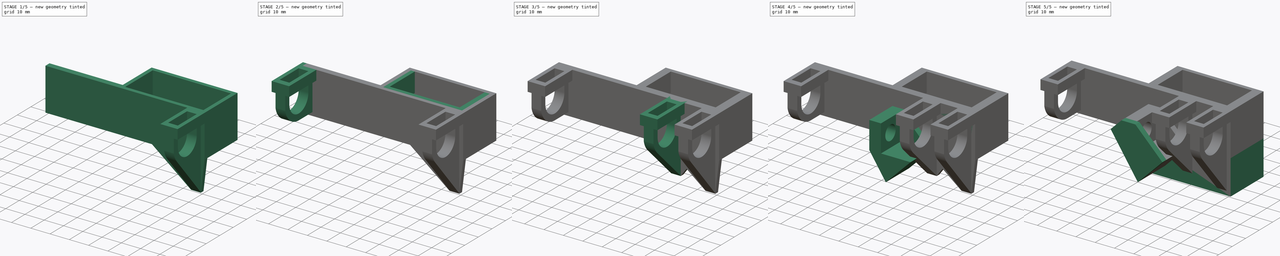
[diagram: build sequence overview — one tinted view per stage of 5, left to right]
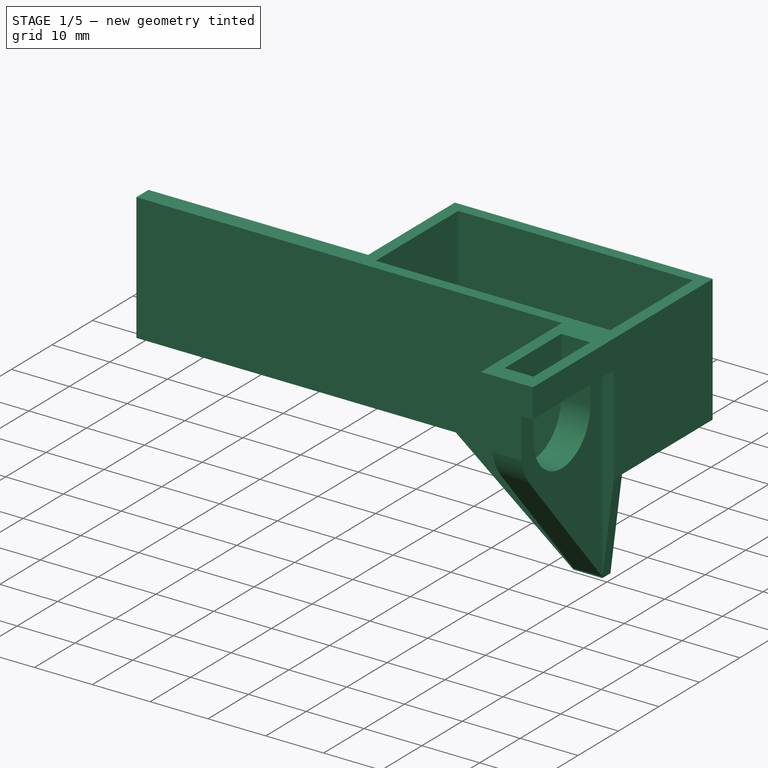
[diagram: stage 1 of 5 — iso view after this stage's code; geometry added in this stage tinted green]
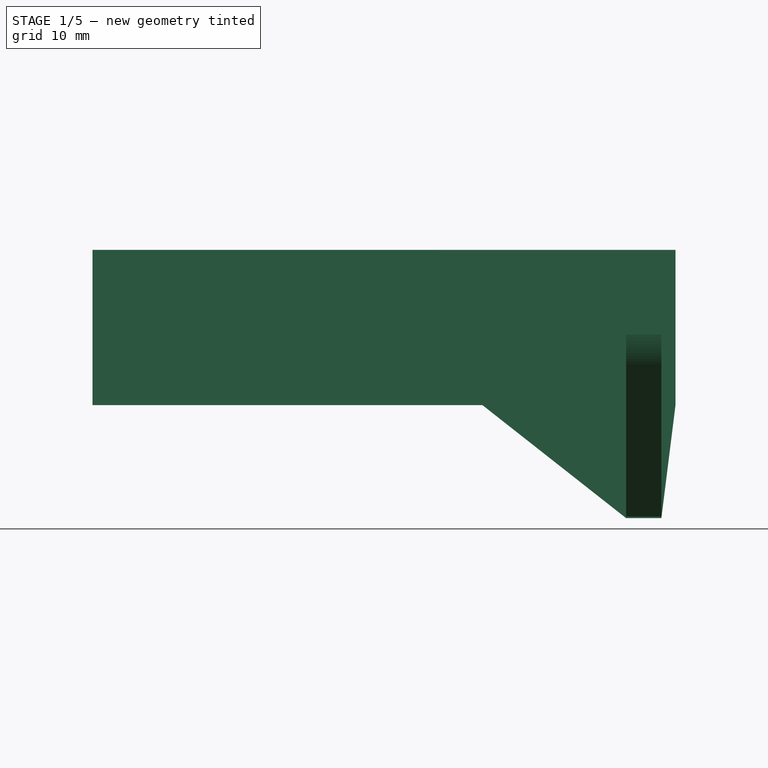
[diagram: stage 1 of 5 — front view after this stage's code; geometry added in this stage tinted green]
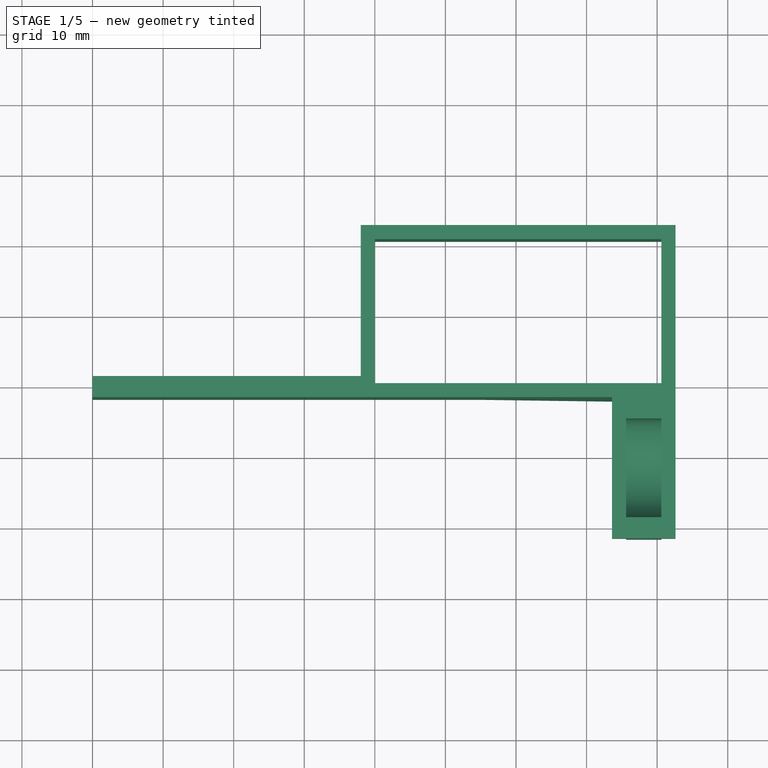
[diagram: stage 1 of 5 — top view after this stage's code; geometry added in this stage tinted green]
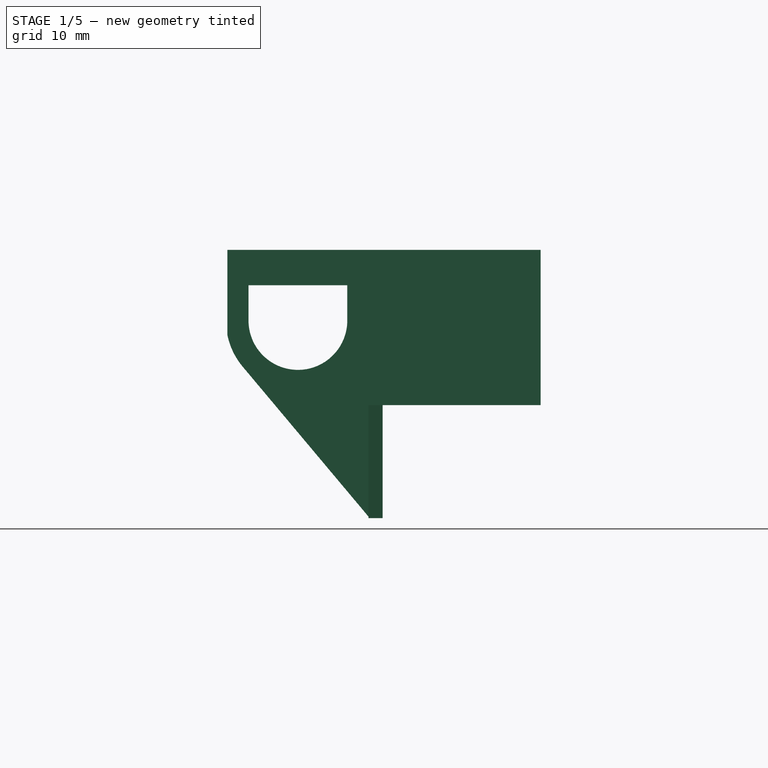
[diagram: stage 1 of 5 — right view after this stage's code; geometry added in this stage tinted green]
FCSTD DOCUMENT  (FreeCAD 1.0R39109 (Git))
Label: CapL
License: All rights reserved
LicenseURL: https://en.wikipedia.org/wiki/All_rights_reserved
objects: Sketcher::SketchObject×17, PartDesign::Pad×17, PartDesign::Body×4, PartDesign::AdditiveBox×1, PartDesign::SubtractiveBox×1, App::LinkGroup×1
note: 95 computed .brp shape members not serialized (recipe doc carries the construction recipe); baked Part::Feature solids carry a one-line shape summary decoded from their .brp

FEATURE [PartDesign::Body] Body
  AllowCompound = false
  Group = -> [Pad001,Sketch002,Sketch004,Pad003,Sketch,Pad,Sketch005,Pad004,Sketch012,Pad011]
  Origin = -> Origin
  Tip = -> Pad011
FEATURE [Sketcher::SketchObject] Sketch013
  ArcFitTolerance = 1e-06
  AttachmentOffset = pos=(0,10,40.6) rot=(0,0,1;0rad)
  AttachmentSupport = -> [YZ_Plane003]
  FullyConstrained = true
  MakeInternals = false
  MapMode = 5
  Placement = pos=(40.6,0,10) rot=(0.57735,0.57735,0.57735;2.0944rad)
  sketch-geometry (10):
    g0: LineSegment StartX=-22 StartY=12 StartZ=0 EndX=-22 EndY=0 EndZ=0
    g1: LineSegment StartX=-2 StartY=-25.7829 StartZ=0 EndX=-2 EndY=2 EndZ=0
    g2: LineSegment StartX=-22 StartY=12 StartZ=0 EndX=-19 EndY=12 EndZ=0
    g3: LineSegment StartX=-19 StartY=12 StartZ=0 EndX=-19 EndY=2 EndZ=0
    g4: LineSegment StartX=-19.8122 StartY=-4.55517 StartZ=0 EndX=-2 EndY=-25.7829 EndZ=0
    g5: ArcOfCircle CenterX=-12 CenterY=2 CenterZ=0 NormalX=0 NormalY=0 NormalZ=1 AngleXU=0 Radius=7 StartAngle=3.14159 EndAngle=6.28319
    g6: ArcOfCircle CenterX=-12 CenterY=2 CenterZ=0 NormalX=0 NormalY=0 NormalZ=1 AngleXU=0 Radius=10.198 StartAngle=3.33899 EndAngle=3.83972
    g7: LineSegment StartX=-5 StartY=2 StartZ=0 EndX=-5 EndY=12 EndZ=0
    g8: LineSegment StartX=-5 StartY=12 StartZ=0 EndX=-2 EndY=12 EndZ=0
    g9: LineSegment StartX=-2 StartY=12 StartZ=0 EndX=-2 EndY=2 EndZ=0
  constraints (29):
    c: Vertical(g0)
    c: Vertical(g1)
    c: Coincident(g0,g2)
    c: Horizontal(g2)
    c: Coincident(g2,g3)
    c: Vertical(g3)
    c: Coincident(g4,g1)
    c: DistanceX(g2,g2) = 3
    c: DistanceY(g0) = 12
    c: DistanceY(g3,g1) = 0
    c: DistanceY(g-1,g1) = 2
    c: DistanceX(g1,g-1) = 2
    c: DistanceY(g0,g-1) = 0
    c: Coincident(g5,g3)
    c: DistanceY(g5,g3) = 0
    c: Coincident(g6,g5)
    c: Coincident(g6,g0)
    c: Tangent(g6,g4) = -1.5708
    c: Angle(g1,g4) = 0.698132
    c: Radius(g5) = 7
    c: DistanceX(g5,g1) = 3
    c: Vertical(g7)
    c: Coincident(g7,g8)
    c: Horizontal(g8)
    c: Coincident(g8,g9)
    c: Vertical(g9)
    c: Tangent(g7,g5) = -1.5708
    c: Coincident(g9,g1)
    c: DistanceY(g7,g2) = 0
FEATURE [Sketcher::SketchObject] Sketch014
  ArcFitTolerance = 0
  AttachmentSupport = -> [XY_Plane003]
  FullyConstrained = true
  MakeInternals = false
  MapMode = 5
  sketch-geometry (10):
    g0: LineSegment StartX=0 StartY=20.4 StartZ=0 EndX=40.6 EndY=20.4 EndZ=0
    g1: LineSegment StartX=40.6 StartY=20.4 StartZ=0 EndX=40.6 EndY=0 EndZ=0
    g2: LineSegment StartX=40.6 StartY=0 StartZ=0 EndX=0 EndY=0 EndZ=0
    g3: LineSegment StartX=0 StartY=0 StartZ=0 EndX=0 EndY=20.4 EndZ=0
    g4: LineSegment StartX=-2 StartY=22.4 StartZ=0 EndX=42.6 EndY=22.4 EndZ=0
    g5: LineSegment StartX=42.6 StartY=22.4 StartZ=0 EndX=42.6 EndY=-2 EndZ=0
    g6: LineSegment StartX=42.6 StartY=-2 StartZ=0 EndX=-40 EndY=-2 EndZ=0
    g7: LineSegment StartX=-2 StartY=1 StartZ=0 EndX=-2 EndY=22.4 EndZ=0
    g8: LineSegment StartX=-2 StartY=1 StartZ=0 EndX=-40 EndY=1 EndZ=0
    g9: LineSegment StartX=-40 StartY=1 StartZ=0 EndX=-40 EndY=-2 EndZ=0
  constraints (30):
    c: Coincident(g0,g1)
    c: Coincident(g1,g2)
    c: Coincident(g2,g3)
    c: Coincident(g3,g0)
    c: Horizontal(g0)
    c: Horizontal(g2)
    c: Vertical(g1)
    c: Vertical(g3)
    c: Coincident(g4,g5)
    c: Coincident(g5,g6)
    c: Coincident(g7,g4)
    c: Horizontal(g4)
    c: Horizontal(g6)
    c: Vertical(g5)
    c: Vertical(g7)
    c: DistanceX(g2) = 0
    c: DistanceY(g2) = 0
    c: DistanceY(g3,g3) = 20.4
    c: DistanceX(g0,g0) = 40.6
    c: DistanceX(g0,g4) = 2
    c: DistanceX(g4,g0) = 2
    c: DistanceY(g0,g4) = 2
    c: DistanceY(g5,g1) = 2
    c: Coincident(g7,g8)
    c: Horizontal(g8)
    c: Coincident(g8,g9)
    c: Coincident(g9,g6)
    c: Vertical(g9)
    c: DistanceX(g8,g2) = 40
    c: DistanceY(g9,g9) = 3
FEATURE [PartDesign::Pad] Pad013
  Direction = (0,0,1)
  Length = 22
  Length2 = 10
  Profile = -> Sketch014
  ReferenceAxis = -> Sketch014 [N_Axis]
  Suppressed = false
  Type = 0
FEATURE [Sketcher::SketchObject] Sketch015
  ArcFitTolerance = 1e-06
  AttachmentSupport = -> [XZ_Plane003]
  FullyConstrained = true
  MakeInternals = false
  MapMode = 5
  Placement = pos=(0,0,0) rot=(1,0,0;1.5708rad)
  sketch-geometry (5):
    g0: LineSegment StartX=0 StartY=12 StartZ=0 EndX=35.6 EndY=-16 EndZ=0
    g1: LineSegment StartX=35.6 StartY=-16 StartZ=0 EndX=40.6 EndY=-16 EndZ=0
    g2: LineSegment StartX=42.6 StartY=12 StartZ=0 EndX=0 EndY=12 EndZ=0
    g3: LineSegment StartX=42.6 StartY=0 StartZ=0 EndX=42.6 EndY=12 EndZ=0
    g4: LineSegment StartX=42.6 StartY=0 StartZ=0 EndX=40.6 EndY=-16 EndZ=0
  constraints (15):
    c: Coincident(g0,g1)
    c: Coincident(g2,g0)
    c: Horizontal(g1)
    c: Horizontal(g2)
    c: DistanceX(g0) = 0
    c: DistanceY(g0) = 12
    c: DistanceX(g-1,g2) = 42.6
    c: DistanceY(g0,g-1) = 16
    c: Coincident(g2,g3)
    c: DistanceX(g1,g1) = 5
    c: Vertical(g3)
    c: Coincident(g4,g3)
    c: Coincident(g4,g1)
    c: DistanceY(g-1,g3) = 0
    c: DistanceX(g1,g3) = 2
FEATURE [PartDesign::Pad] Pad014
  BaseFeature = -> Pad013
  Direction = (0,-1,2e-16)
  Length = 2
  Length2 = 10
  Profile = -> Sketch015
  ReferenceAxis = -> Sketch015 [N_Axis]
  Suppressed = false
  Type = 0
FEATURE [PartDesign::Pad] Pad012
  BaseFeature = -> Pad014
  Direction = (1,0,0)
  Length = 5
  Length2 = 10
  Profile = -> Sketch013
  ReferenceAxis = -> Sketch013 [N_Axis]
  Reversed = true
  Suppressed = false
  Type = 0
FEATURE [Sketcher::SketchObject] Sketch016
  ArcFitTolerance = 1e-06
  AttachmentOffset = pos=(35.6,0,22) rot=(0,0,1;0rad)
  AttachmentSupport = -> [XY_Plane003]
  FullyConstrained = true
  MakeInternals = false
  MapMode = 5
  Placement = pos=(35.6,0,22) rot=(0,0,1;0rad)
  sketch-geometry (8):
    g0: LineSegment StartX=5 StartY=-2 StartZ=0 EndX=0 EndY=-2 EndZ=0
    g1: LineSegment StartX=0 StartY=-2 StartZ=0 EndX=0 EndY=-19 EndZ=0
    g2: LineSegment StartX=0 StartY=-19 StartZ=0 EndX=5 EndY=-19 EndZ=0
    g3: LineSegment StartX=5 StartY=-19 StartZ=0 EndX=5 EndY=-2 EndZ=0
    g4: LineSegment StartX=-2 StartY=0 StartZ=0 EndX=-2 EndY=-22 EndZ=0
    g5: LineSegment StartX=-2 StartY=-22 StartZ=0 EndX=7 EndY=-22 EndZ=0
    g6: LineSegment StartX=7 StartY=-22 StartZ=0 EndX=7 EndY=0 EndZ=0
    g7: LineSegment StartX=7 StartY=0 StartZ=0 EndX=-2 EndY=0 EndZ=0
  constraints (24):
    c: Coincident(g0,g1)
    c: Coincident(g1,g2)
    c: Coincident(g2,g3)
    c: Coincident(g3,g0)
    c: Horizontal(g0)
    c: Horizontal(g2)
    c: Vertical(g1)
    c: Vertical(g3)
    c: DistanceX(g0) = 0
    c: DistanceY(g0) = -2
    c: DistanceX(g2) = 5
    c: DistanceY(g2) = -19
    c: Coincident(g4,g5)
    c: Coincident(g5,g6)
    c: Coincident(g6,g7)
    c: Coincident(g7,g4)
    c: Vertical(g4)
    c: Vertical(g6)
    c: Horizontal(g5)
    c: Horizontal(g7)
    c: DistanceX(g4) = -2
    c: DistanceY(g4) = 0
    c: DistanceY(g5,g2) = 3
    c: DistanceX(g0,g6) = 2
FEATURE [PartDesign::Pad] Pad015
  BaseFeature = -> Pad012
  Direction = (0,0,1)
  Length = 5
  Length2 = 10
  Profile = -> Sketch016
  ReferenceAxis = -> Sketch016 [N_Axis]
  Reversed = true
  Suppressed = false
  Type = 0
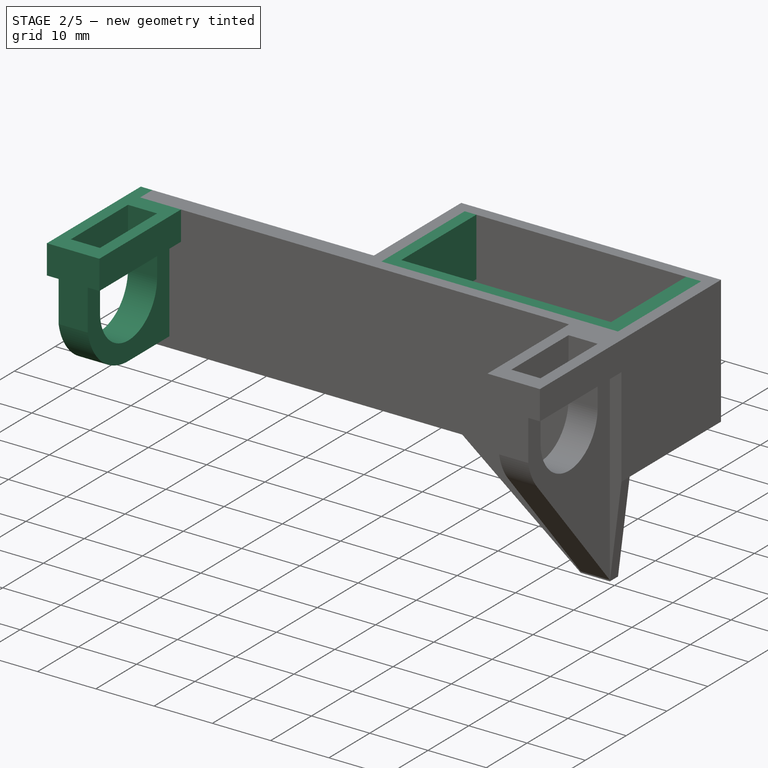
[diagram: stage 2 of 5 — iso view after this stage's code; geometry added in this stage tinted green]
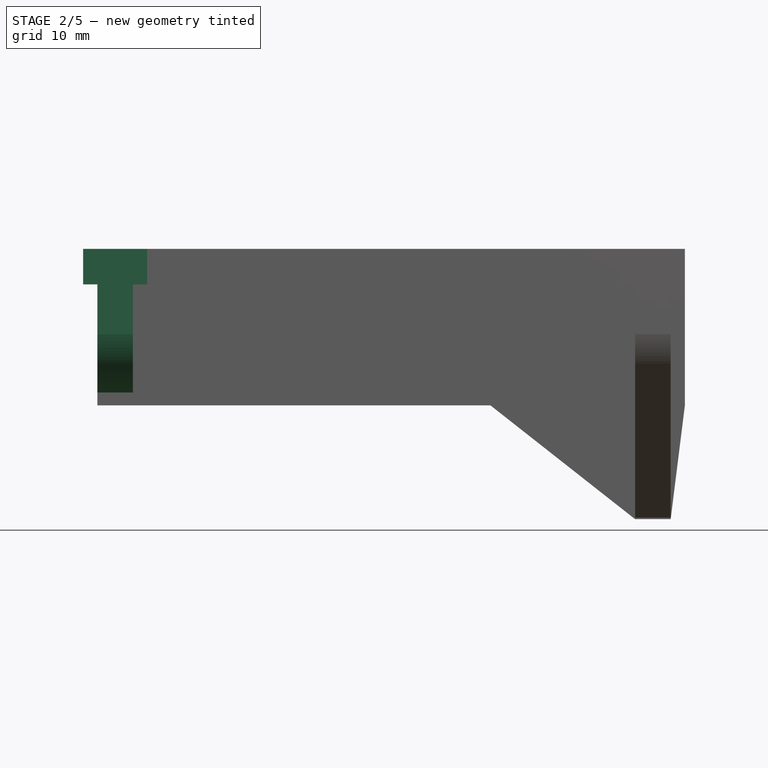
[diagram: stage 2 of 5 — front view after this stage's code; geometry added in this stage tinted green]
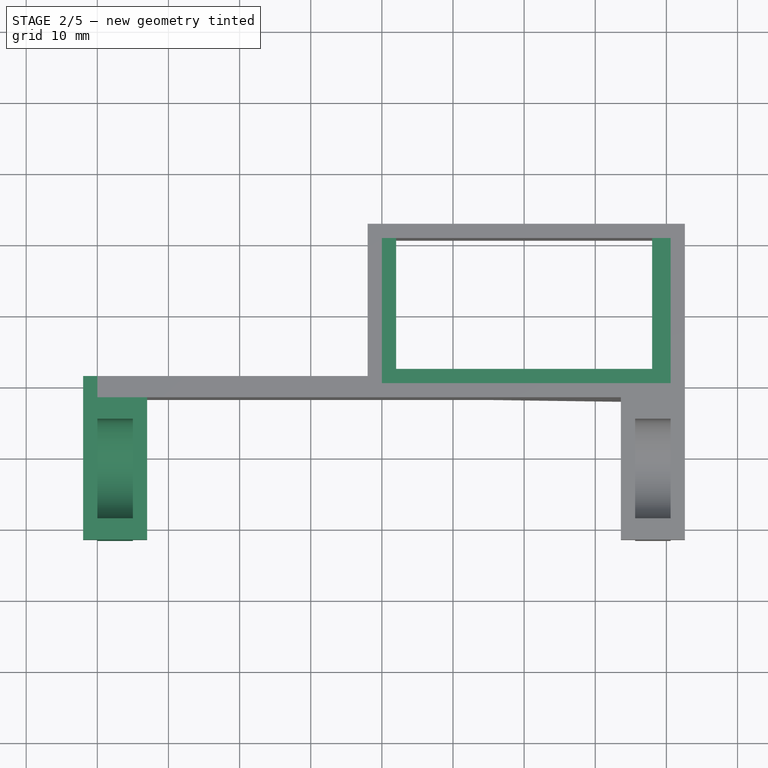
[diagram: stage 2 of 5 — top view after this stage's code; geometry added in this stage tinted green]
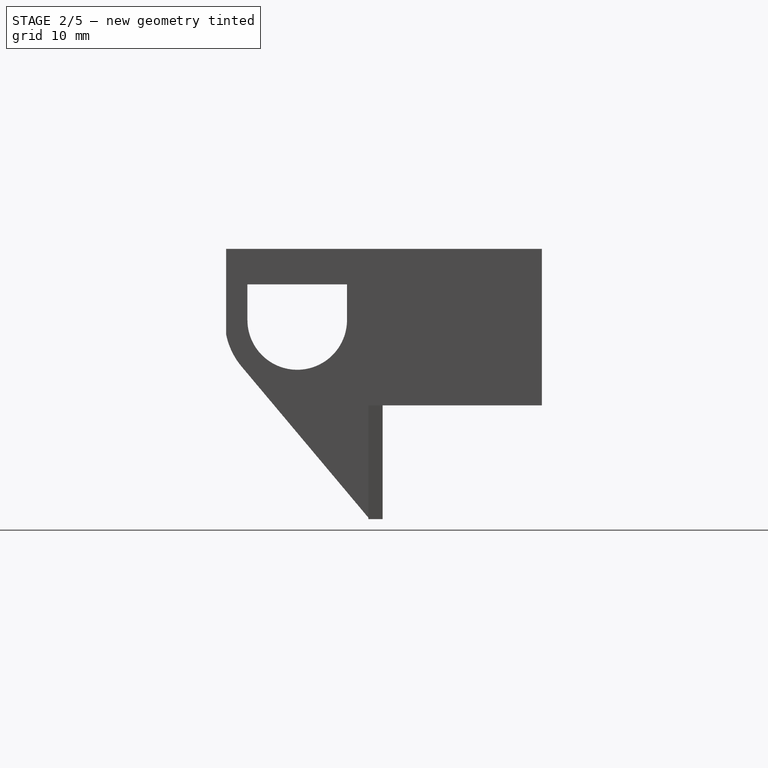
[diagram: stage 2 of 5 — right view after this stage's code; geometry added in this stage tinted green]
FEATURE [Sketcher::SketchObject] Sketch002
  ArcFitTolerance = 0
  AttachmentSupport = -> [XY_Plane]
  FullyConstrained = true
  MakeInternals = false
  MapMode = 5
  sketch-geometry (8):
    g0: LineSegment StartX=0 StartY=20.4 StartZ=0 EndX=40.6 EndY=20.4 EndZ=0
    g1: LineSegment StartX=40.6 StartY=20.4 StartZ=0 EndX=40.6 EndY=0 EndZ=0
    g2: LineSegment StartX=40.6 StartY=0 StartZ=0 EndX=0 EndY=0 EndZ=0
    g3: LineSegment StartX=0 StartY=0 StartZ=0 EndX=0 EndY=20.4 EndZ=0
    g4: LineSegment StartX=-2 StartY=22.4 StartZ=0 EndX=42.6 EndY=22.4 EndZ=0
    g5: LineSegment StartX=42.6 StartY=22.4 StartZ=0 EndX=42.6 EndY=-2 EndZ=0
    g6: LineSegment StartX=42.6 StartY=-2 StartZ=0 EndX=-2 EndY=-2 EndZ=0
    g7: LineSegment StartX=-2 StartY=-2 StartZ=0 EndX=-2 EndY=22.4 EndZ=0
  constraints (24):
    c: Coincident(g0,g1)
    c: Coincident(g1,g2)
    c: Coincident(g2,g3)
    c: Coincident(g3,g0)
    c: Horizontal(g0)
    c: Horizontal(g2)
    c: Vertical(g1)
    c: Vertical(g3)
    c: Coincident(g4,g5)
    c: Coincident(g5,g6)
    c: Coincident(g7,g4)
    c: Horizontal(g4)
    c: Horizontal(g6)
    c: Vertical(g5)
    c: Vertical(g7)
    c: DistanceX(g2) = 0
    c: DistanceY(g2) = 0
    c: DistanceY(g3,g3) = 20.4
    c: DistanceX(g0,g0) = 40.6
    c: DistanceX(g0,g4) = 2
    c: DistanceX(g4,g0) = 2
    c: DistanceY(g0,g4) = 2
    c: DistanceY(g5,g1) = 2
    c: Coincident(g6,g7)
FEATURE [PartDesign::Pad] Pad001
  Direction = (0,0,1)
  Length = 12
  Length2 = 10
  Profile = -> Sketch002
  ReferenceAxis = -> Sketch002 [N_Axis]
  Suppressed = false
  Type = 0
FEATURE [Sketcher::SketchObject] Sketch017
  ArcFitTolerance = 1e-06
  AttachmentOffset = pos=(0,0,12) rot=(0,0,1;0rad)
  AttachmentSupport = -> [XY_Plane003]
  FullyConstrained = true
  MakeInternals = false
  MapMode = 5
  Placement = pos=(0,0,12) rot=(0,0,1;0rad)
  sketch-geometry (8):
    g0: LineSegment StartX=-2 StartY=22.4 StartZ=0 EndX=-2 EndY=-2 EndZ=0
    g1: LineSegment StartX=-2 StartY=-2 StartZ=0 EndX=42.6 EndY=-2 EndZ=0
    g2: LineSegment StartX=42.6 StartY=-2 StartZ=0 EndX=42.6 EndY=22.4 EndZ=0
    g3: LineSegment StartX=42.6 StartY=22.4 StartZ=0 EndX=-2 EndY=22.4 EndZ=0
    g4: LineSegment StartX=38 StartY=20.4 StartZ=0 EndX=2 EndY=20.4 EndZ=0
    g5: LineSegment StartX=2 StartY=20.4 StartZ=0 EndX=2 EndY=2 EndZ=0
    g6: LineSegment StartX=2 StartY=2 StartZ=0 EndX=38 EndY=2 EndZ=0
    g7: LineSegment StartX=38 StartY=2 StartZ=0 EndX=38 EndY=20.4 EndZ=0
  constraints (24):
    c: Coincident(g0,g1)
    c: Coincident(g1,g2)
    c: Coincident(g2,g3)
    c: Coincident(g3,g0)
    c: Vertical(g0)
    c: Vertical(g2)
    c: Horizontal(g1)
    c: Horizontal(g3)
    c: DistanceX(g2) = 42.6
    c: DistanceY(g2) = 22.4
    c: DistanceX(g0) = -2
    c: DistanceY(g0) = -2
    c: Coincident(g4,g5)
    c: Coincident(g5,g6)
    c: Coincident(g6,g7)
    c: Coincident(g7,g4)
    c: Horizontal(g4)
    c: Horizontal(g6)
    c: Vertical(g5)
    c: Vertical(g7)
    c: DistanceX(g4) = 38
    c: DistanceY(g4) = 20.4
    c: DistanceX(g5) = 2
    c: DistanceY(g5) = 2
FEATURE [PartDesign::Pad] Pad016
  BaseFeature = -> Pad015
  Direction = (0,0,1)
  Length = 10
  Length2 = 10
  Profile = -> Sketch017
  ReferenceAxis = -> Sketch017 [N_Axis]
  Suppressed = false
  Type = 0
FEATURE [Sketcher::SketchObject] Sketch018
  ArcFitTolerance = 1e-06
  AttachmentOffset = pos=(0,10,-40) rot=(0,0,1;0rad)
  AttachmentSupport = -> [YZ_Plane003]
  FullyConstrained = true
  MakeInternals = false
  MapMode = 5
  Placement = pos=(-40,0,10) rot=(0.57735,0.57735,0.57735;2.0944rad)
  sketch-geometry (10):
    g0: LineSegment StartX=-22 StartY=12 StartZ=0 EndX=-22 EndY=0 EndZ=0
    g1: LineSegment StartX=-2 StartY=-8.19804 StartZ=0 EndX=-2 EndY=2 EndZ=0
    g2: LineSegment StartX=-22 StartY=12 StartZ=0 EndX=-19 EndY=12 EndZ=0
    g3: LineSegment StartX=-19 StartY=12 StartZ=0 EndX=-19 EndY=2 EndZ=0
    g4: LineSegment StartX=-12 StartY=-8.19804 StartZ=0 EndX=-2 EndY=-8.19804 EndZ=0
    g5: ArcOfCircle CenterX=-12 CenterY=2 CenterZ=0 NormalX=0 NormalY=0 NormalZ=1 AngleXU=0 Radius=7 StartAngle=3.14159 EndAngle=6.28319
    g6: ArcOfCircle CenterX=-12 CenterY=2 CenterZ=0 NormalX=0 NormalY=0 NormalZ=1 AngleXU=0 Radius=10.198 StartAngle=3.33899 EndAngle=4.71239
    g7: LineSegment StartX=-5 StartY=2 StartZ=0 EndX=-5 EndY=12 EndZ=0
    g8: LineSegment StartX=-5 StartY=12 StartZ=0 EndX=-2 EndY=12 EndZ=0
    g9: LineSegment StartX=-2 StartY=12 StartZ=0 EndX=-2 EndY=2 EndZ=0
  constraints (29):
    c: Vertical(g0)
    c: Vertical(g1)
    c: Coincident(g0,g2)
    c: Horizontal(g2)
    c: Coincident(g2,g3)
    c: Vertical(g3)
    c: Coincident(g4,g1)
    c: DistanceX(g2,g2) = 3
    c: DistanceY(g0) = 12
    c: DistanceY(g3,g1) = 0
    c: DistanceY(g-1,g1) = 2
    c: DistanceX(g1,g-1) = 2
    c: DistanceY(g0,g-1) = 0
    c: Coincident(g5,g3)
    c: DistanceY(g5,g3) = 0
    c: Coincident(g6,g5)
    c: Coincident(g6,g0)
    c: Tangent(g6,g4) = -1.5708
    c: Radius(g5) = 7
    c: DistanceX(g5,g1) = 3
    c: Vertical(g7)
    c: Coincident(g7,g8)
    c: Horizontal(g8)
    c: Coincident(g8,g9)
    c: Vertical(g9)
    c: Tangent(g7,g5) = -1.5708
    c: Coincident(g9,g1)
    c: DistanceY(g7,g2) = 0
    c: Horizontal(g4)
FEATURE [Sketcher::SketchObject] Sketch019
  ArcFitTolerance = 1e-06
  AttachmentOffset = pos=(-40,0,22) rot=(0,0,1;0rad)
  AttachmentSupport = -> [XY_Plane003]
  FullyConstrained = true
  MakeInternals = false
  MapMode = 5
  Placement = pos=(-40,0,22) rot=(0,0,1;0rad)
  sketch-geometry (8):
    g0: LineSegment StartX=5 StartY=-2 StartZ=0 EndX=0 EndY=-2 EndZ=0
    g1: LineSegment StartX=0 StartY=-2 StartZ=0 EndX=0 EndY=-19 EndZ=0
    g2: LineSegment StartX=0 StartY=-19 StartZ=0 EndX=5 EndY=-19 EndZ=0
    g3: LineSegment StartX=5 StartY=-19 StartZ=0 EndX=5 EndY=-2 EndZ=0
    g4: LineSegment StartX=-2 StartY=1 StartZ=0 EndX=-2 EndY=-22 EndZ=0
    g5: LineSegment StartX=-2 StartY=-22 StartZ=0 EndX=7 EndY=-22 EndZ=0
    g6: LineSegment StartX=7 StartY=-22 StartZ=0 EndX=7 EndY=1 EndZ=0
    g7: LineSegment StartX=7 StartY=1 StartZ=0 EndX=-2 EndY=1 EndZ=0
  constraints (24):
    c: Coincident(g0,g1)
    c: Coincident(g1,g2)
    c: Coincident(g2,g3)
    c: Coincident(g3,g0)
    c: Horizontal(g0)
    c: Horizontal(g2)
    c: Vertical(g1)
    c: Vertical(g3)
    c: DistanceX(g0) = 0
    c: DistanceY(g0) = -2
    c: DistanceX(g2) = 5
    c: DistanceY(g2) = -19
    c: Coincident(g4,g5)
    c: Coincident(g5,g6)
    c: Coincident(g6,g7)
    c: Coincident(g7,g4)
    c: Vertical(g4)
    c: Vertical(g6)
    c: Horizontal(g5)
    c: Horizontal(g7)
    c: DistanceX(g4) = -2
    c: DistanceY(g4) = 1
    c: DistanceY(g5,g2) = 3
    c: DistanceX(g0,g6) = 2
FEATURE [PartDesign::Pad] Pad017
  BaseFeature = -> Pad016
  Direction = (1,0,0)
  Length = 5
  Length2 = 10
  Profile = -> Sketch018
  ReferenceAxis = -> Sketch018 [N_Axis]
  Suppressed = false
  Type = 0
FEATURE [PartDesign::Pad] Pad018
  BaseFeature = -> Pad017
  Direction = (0,0,1)
  Length = 5
  Length2 = 10
  Profile = -> Sketch019
  ReferenceAxis = -> Sketch019 [N_Axis]
  Reversed = true
  Suppressed = false
  Type = 0
FEATURE [PartDesign::Body] Body003
  AllowCompound = false
  Group = -> [Pad013,Sketch014,Sketch015,Pad014,Sketch013,Pad012,Sketch016,Pad015,Sketch017,Pad016,Sketch018,Sketch019,Pad017,Pad018]
  Origin = -> Origin003
  Tip = -> Pad018
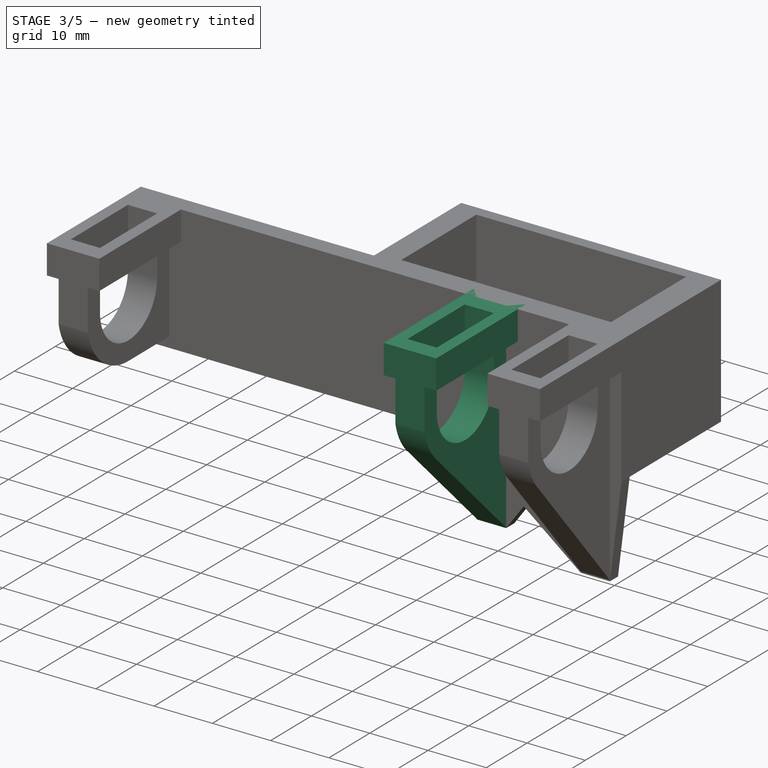
[diagram: stage 3 of 5 — iso view after this stage's code; geometry added in this stage tinted green]
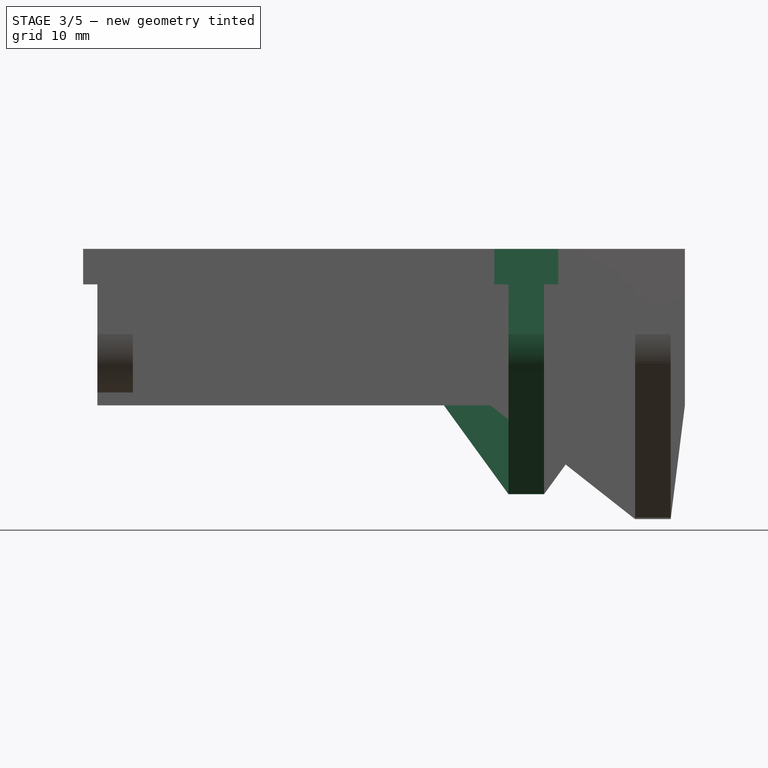
[diagram: stage 3 of 5 — front view after this stage's code; geometry added in this stage tinted green]
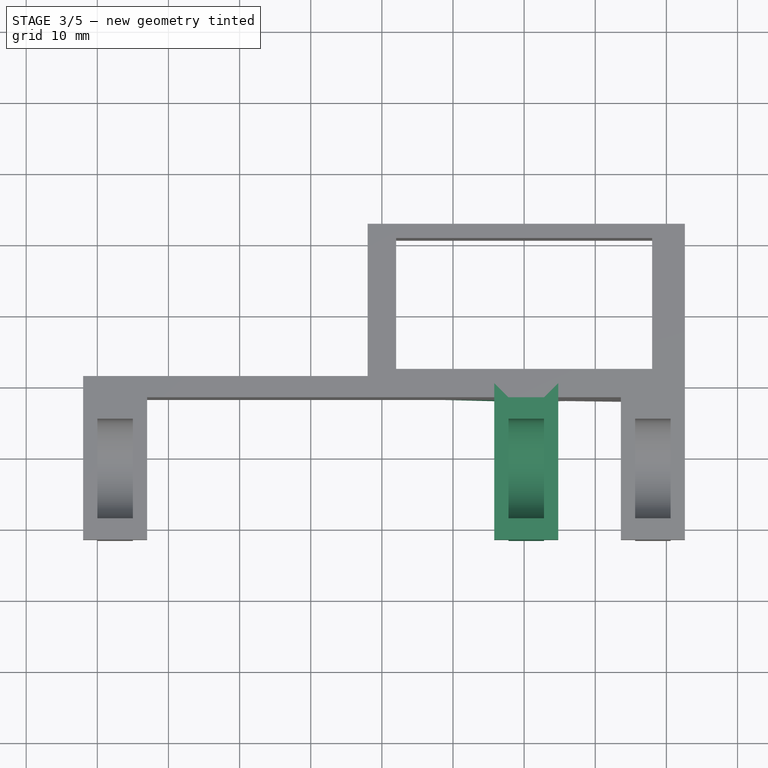
[diagram: stage 3 of 5 — top view after this stage's code; geometry added in this stage tinted green]
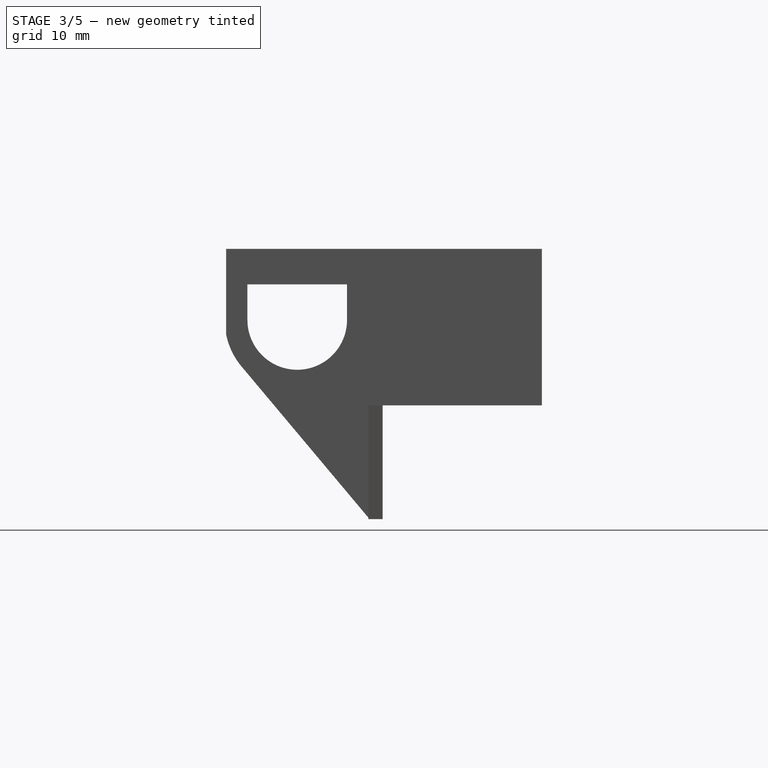
[diagram: stage 3 of 5 — right view after this stage's code; geometry added in this stage tinted green]
FEATURE [Sketcher::SketchObject] Sketch
  ArcFitTolerance = 1e-06
  AttachmentOffset = pos=(0,10,17.8) rot=(0,0,1;0rad)
  AttachmentSupport = -> [YZ_Plane]
  FullyConstrained = true
  MakeInternals = false
  MapMode = 5
  Placement = pos=(17.8,0,10) rot=(0.57735,0.57735,0.57735;2.0944rad)
  sketch-geometry (10):
    g0: LineSegment StartX=-22 StartY=12 StartZ=0 EndX=-22 EndY=0 EndZ=0
    g1: LineSegment StartX=-2 StartY=-22.4222 StartZ=0 EndX=-2 EndY=2 EndZ=0
    g2: LineSegment StartX=-22 StartY=12 StartZ=0 EndX=-19 EndY=12 EndZ=0
    g3: LineSegment StartX=-19 StartY=12 StartZ=0 EndX=-19 EndY=2 EndZ=0
    g4: LineSegment StartX=-19.2111 StartY=-5.2111 StartZ=0 EndX=-2 EndY=-22.4222 EndZ=0
    g5: ArcOfCircle CenterX=-12 CenterY=2 CenterZ=0 NormalX=0 NormalY=0 NormalZ=1 AngleXU=0 Radius=7 StartAngle=3.14159 EndAngle=6.28319
    g6: ArcOfCircle CenterX=-12 CenterY=2 CenterZ=0 NormalX=0 NormalY=0 NormalZ=1 AngleXU=0 Radius=10.198 StartAngle=3.33899 EndAngle=3.92699
    g7: LineSegment StartX=-5 StartY=2 StartZ=0 EndX=-5 EndY=12 EndZ=0
    g8: LineSegment StartX=-5 StartY=12 StartZ=0 EndX=-2 EndY=12 EndZ=0
    g9: LineSegment StartX=-2 StartY=12 StartZ=0 EndX=-2 EndY=2 EndZ=0
  constraints (29):
    c: Vertical(g0)
    c: Vertical(g1)
    c: Coincident(g0,g2)
    c: Horizontal(g2)
    c: Coincident(g2,g3)
    c: Vertical(g3)
    c: Coincident(g4,g1)
    c: DistanceX(g2,g2) = 3
    c: DistanceY(g0) = 12
    c: DistanceY(g3,g1) = 0
    c: DistanceY(g-1,g1) = 2
    c: DistanceX(g1,g-1) = 2
    c: DistanceY(g0,g-1) = 0
    c: Coincident(g5,g3)
    c: DistanceY(g5,g3) = 0
    c: Coincident(g6,g5)
    c: Coincident(g6,g0)
    c: Tangent(g6,g4) = -1.5708
    c: Angle(g1,g4) = 0.785398
    c: Radius(g5) = 7
    c: DistanceX(g5,g1) = 3
    c: Vertical(g7)
    c: Coincident(g7,g8)
    c: Horizontal(g8)
    c: Coincident(g8,g9)
    c: Vertical(g9)
    c: Tangent(g7,g5) = -1.5708
    c: Coincident(g9,g1)
    c: DistanceY(g7,g2) = 0
FEATURE [Sketcher::SketchObject] Sketch005
  ArcFitTolerance = 1e-06
  AttachmentOffset = pos=(17.8,0,22) rot=(0,0,1;0rad)
  AttachmentSupport = -> [XY_Plane]
  FullyConstrained = true
  MakeInternals = false
  MapMode = 5
  Placement = pos=(17.8,0,22) rot=(0,0,1;0rad)
  sketch-geometry (8):
    g0: LineSegment StartX=5 StartY=-2 StartZ=0 EndX=0 EndY=-2 EndZ=0
    g1: LineSegment StartX=0 StartY=-2 StartZ=0 EndX=0 EndY=-19 EndZ=0
    g2: LineSegment StartX=0 StartY=-19 StartZ=0 EndX=5 EndY=-19 EndZ=0
    g3: LineSegment StartX=5 StartY=-19 StartZ=0 EndX=5 EndY=-2 EndZ=0
    g4: LineSegment StartX=-2 StartY=0 StartZ=0 EndX=-2 EndY=-22 EndZ=0
    g5: LineSegment StartX=-2 StartY=-22 StartZ=0 EndX=7 EndY=-22 EndZ=0
    g6: LineSegment StartX=7 StartY=-22 StartZ=0 EndX=7 EndY=0 EndZ=0
    g7: LineSegment StartX=7 StartY=0 StartZ=0 EndX=-2 EndY=0 EndZ=0
  constraints (24):
    c: Coincident(g0,g1)
    c: Coincident(g1,g2)
    c: Coincident(g2,g3)
    c: Coincident(g3,g0)
    c: Horizontal(g0)
    c: Horizontal(g2)
    c: Vertical(g1)
    c: Vertical(g3)
    c: DistanceX(g0) = 0
    c: DistanceY(g0) = -2
    c: DistanceX(g2) = 5
    c: DistanceY(g2) = -19
    c: Coincident(g4,g5)
    c: Coincident(g5,g6)
    c: Coincident(g6,g7)
    c: Coincident(g7,g4)
    c: Vertical(g4)
    c: Vertical(g6)
    c: Horizontal(g5)
    c: Horizontal(g7)
    c: DistanceX(g4) = -2
    c: DistanceY(g4) = 0
    c: DistanceY(g5,g2) = 3
    c: DistanceX(g0,g6) = 2
FEATURE [Sketcher::SketchObject] Sketch004
  ArcFitTolerance = 1e-06
  AttachmentSupport = -> [XZ_Plane]
  FullyConstrained = true
  MakeInternals = false
  MapMode = 5
  Placement = pos=(0,0,0) rot=(1,0,0;1.5708rad)
  sketch-geometry (4):
    g0: LineSegment StartX=0 StartY=12 StartZ=0 EndX=17.8 EndY=-12.5 EndZ=0
    g1: LineSegment StartX=17.8 StartY=-12.5 StartZ=0 EndX=22.8 EndY=-12.5 EndZ=0
    g2: LineSegment StartX=40.6 StartY=12 StartZ=0 EndX=0 EndY=12 EndZ=0
    g3: LineSegment StartX=22.8 StartY=-12.5 StartZ=0 EndX=40.6 EndY=12 EndZ=0
  constraints (12):
    c: Coincident(g0,g1)
    c: Coincident(g2,g0)
    c: Horizontal(g1)
    c: Horizontal(g2)
    c: Coincident(g3,g1)
    c: DistanceX(g0) = 0
    c: DistanceY(g0) = 12
    c: DistanceX(g-1,g2) = 40.6
    c: DistanceY(g0,g-1) = 12.5
    c: Coincident(g2,g3)
    c: DistanceX(g1,g1) = 5
    c: Equal(g0,g3)
FEATURE [PartDesign::Pad] Pad003
  BaseFeature = -> Pad001
  Direction = (0,-1,2e-16)
  Length = 2
  Length2 = 10
  Profile = -> Sketch004
  ReferenceAxis = -> Sketch004 [N_Axis]
  Suppressed = false
  Type = 0
FEATURE [PartDesign::Pad] Pad
  BaseFeature = -> Pad003
  Direction = (1,0,0)
  Length = 5
  Length2 = 10
  Profile = -> Sketch
  ReferenceAxis = -> Sketch [N_Axis]
  Suppressed = false
  Type = 0
FEATURE [PartDesign::Pad] Pad004
  BaseFeature = -> Pad
  Direction = (0,0,1)
  Length = 5
  Length2 = 10
  Profile = -> Sketch005
  ReferenceAxis = -> Sketch005 [N_Axis]
  Reversed = true
  Suppressed = false
  Type = 0
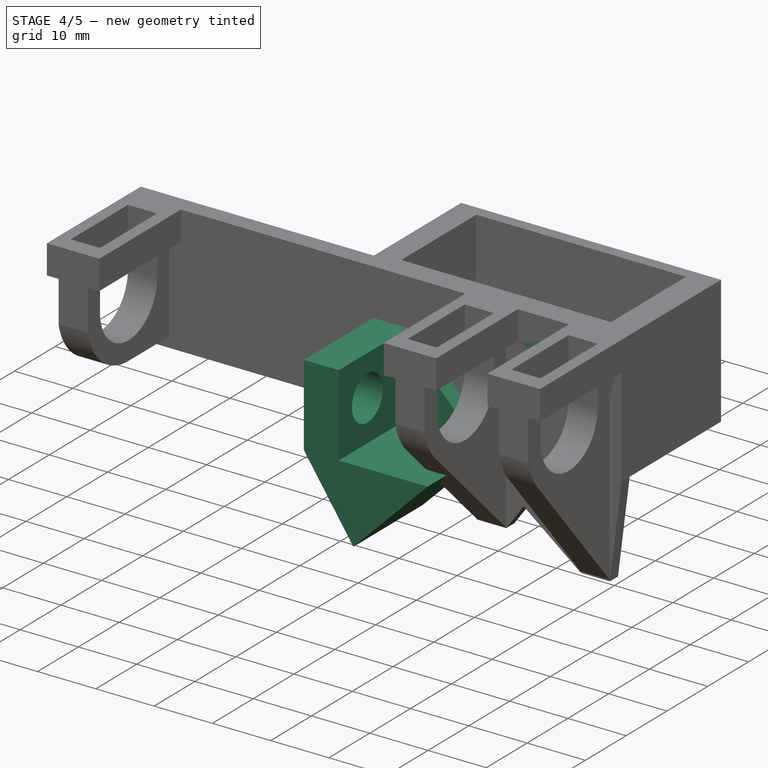
[diagram: stage 4 of 5 — iso view after this stage's code; geometry added in this stage tinted green]
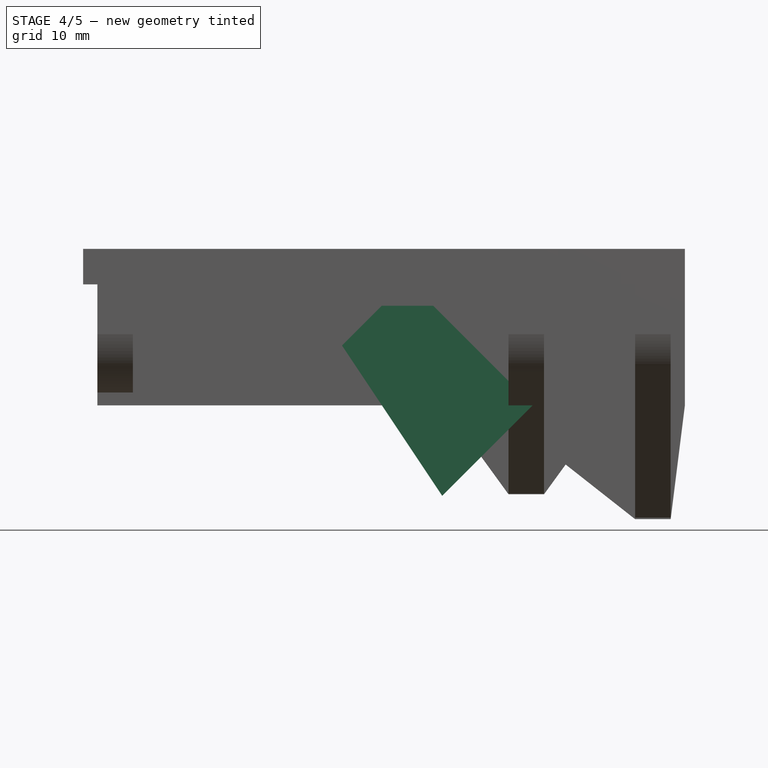
[diagram: stage 4 of 5 — front view after this stage's code; geometry added in this stage tinted green]
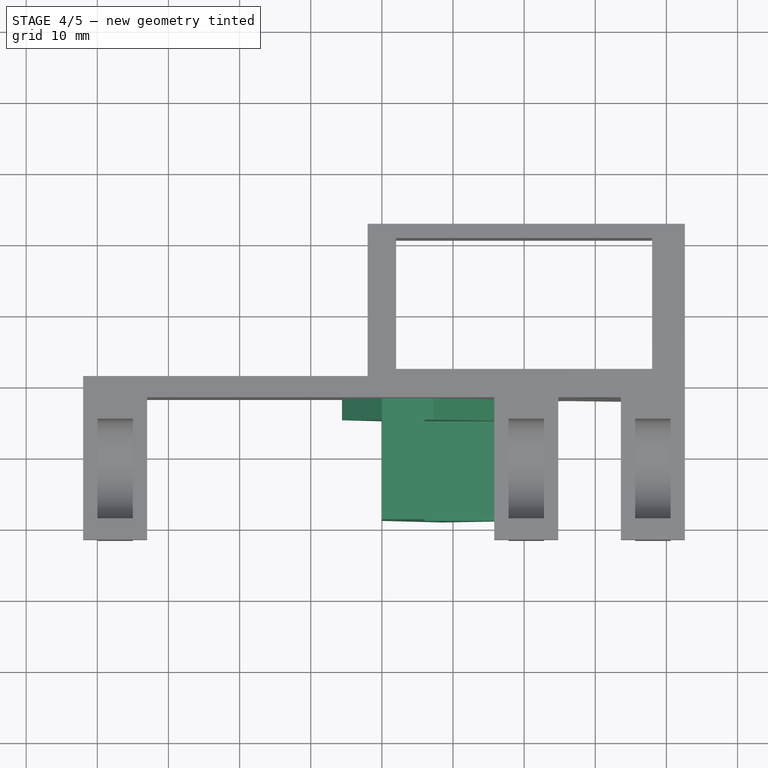
[diagram: stage 4 of 5 — top view after this stage's code; geometry added in this stage tinted green]
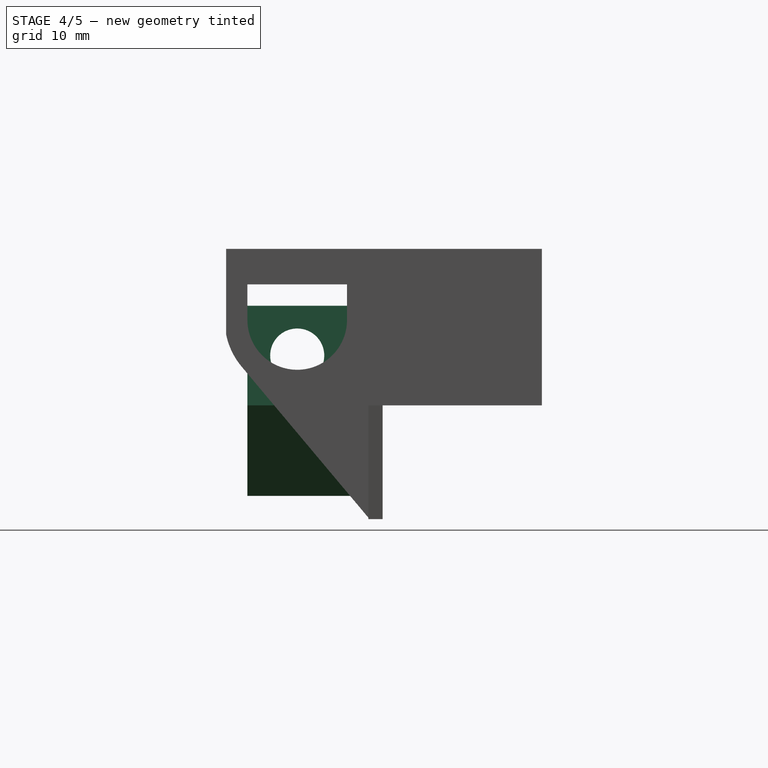
[diagram: stage 4 of 5 — right view after this stage's code; geometry added in this stage tinted green]
FEATURE [Sketcher::SketchObject] Sketch008
  ArcFitTolerance = 1e-06
  AttachmentSupport = -> [YZ_Plane002]
  FullyConstrained = true
  MakeInternals = false
  MapMode = 5
  Placement = pos=(0,0,0) rot=(0.57735,0.57735,0.57735;2.0944rad)
  sketch-geometry (6):
    g0: Circle CenterX=-12 CenterY=7 CenterZ=0 NormalX=0 NormalY=0 NormalZ=1 AngleXU=0 Radius=3.8
    g1: LineSegment StartX=-19 StartY=14 StartZ=0 EndX=-19 EndY=0 EndZ=0
    g2: LineSegment StartX=-19 StartY=0 StartZ=0 EndX=-5 EndY=0 EndZ=0
    g3: LineSegment StartX=-5 StartY=0 StartZ=0 EndX=-5 EndY=14 EndZ=0
    g4: LineSegment StartX=-5 StartY=14 StartZ=0 EndX=-19 EndY=14 EndZ=0
    g5: GeomPoint [constr] X=-12 Y=7 Z=0
  constraints (15):
    c: Coincident(g1,g2)
    c: Coincident(g2,g3)
    c: Coincident(g3,g4)
    c: Coincident(g4,g1)
    c: Vertical(g1)
    c: Vertical(g3)
    c: Horizontal(g2)
    c: Horizontal(g4)
    c: Symmetric(g3,g1,g5)
    c: Coincident(g5,g0)
    c: Radius(g0) = 3.8
    c: DistanceX(g4,g4) = 14
    c: Equal(g4,g3)
    c: DistanceX(g2) = -5
    c: DistanceY(g2) = 0
FEATURE [PartDesign::Pad] Pad007
  Direction = (1,0,0)
  Length = 6
  Length2 = 10
  Placement = pos=(0,0,0) rot=(1,1,1;2.0944rad)
  Profile = -> Sketch008
  ReferenceAxis = -> Sketch008 [N_Axis]
  Suppressed = false
  Type = 0
FEATURE [Sketcher::SketchObject] Sketch009
  ArcFitTolerance = 1e-06
  AttachmentOffset = pos=(0,0,5) rot=(0,0,1;0rad)
  AttachmentSupport = -> [XZ_Plane002]
  FullyConstrained = true
  MakeInternals = false
  MapMode = 5
  Placement = pos=(0,-5,1.1e-15) rot=(1,0,0;1.5708rad)
  sketch-geometry (4):
    g0: LineSegment StartX=0 StartY=0 StartZ=0 EndX=21.2132 EndY=0 EndZ=0
    g1: LineSegment StartX=21.2132 StartY=0 StartZ=0 EndX=8.48528 EndY=-12.7279 EndZ=0
    g2: LineSegment [constr] StartX=10.6066 StartY=-10.6066 StartZ=0 EndX=0 EndY=0 EndZ=0
    g3: LineSegment StartX=0 StartY=0 StartZ=0 EndX=8.48528 EndY=-12.7279 EndZ=0
  constraints (11):
    c: Coincident(g-1,g0)
    c: Coincident(g0,g1)
    c: Coincident(g2,g0)
    c: Horizontal(g0)
    c: Angle(g0,g1) = 0.785398
    c: Perpendicular(g1,g2)
    c: Distance(g2) = 15
    c: PointOnObject(g2,g1)
    c: Coincident(g3,g0)
    c: Coincident(g3,g1)
    c: Distance(g1) = 18
FEATURE [PartDesign::Pad] Pad008
  BaseFeature = -> Pad007
  Direction = (0,-1,2e-16)
  Length = 14
  Length2 = 10
  Placement = pos=(0,0,0) rot=(1,1,1;2.0944rad)
  Profile = -> Sketch009
  ReferenceAxis = -> Sketch009 [N_Axis]
  Suppressed = false
  Type = 0
FEATURE [PartDesign::Body] Body001  label="Cap"
  AllowCompound = false
  Group = -> [Pad006,Sketch007,Box001,Box002]
  Origin = -> Origin001
  Tip = -> Box002
FEATURE [Sketcher::SketchObject] Sketch010
  ArcFitTolerance = 1e-06
  AttachmentOffset = pos=(0,0,5) rot=(0,0,1;0rad)
  AttachmentSupport = -> [XZ_Plane002]
  FullyConstrained = true
  MakeInternals = false
  MapMode = 5
  Placement = pos=(0,-5,1.1e-15) rot=(1,0,0;1.5708rad)
  sketch-geometry (6):
    g0: LineSegment StartX=0 StartY=14 StartZ=0 EndX=7.2132 EndY=14 EndZ=0
    g1: LineSegment StartX=7.2132 StartY=14 StartZ=0 EndX=21.2132 EndY=0 EndZ=0
    g2: LineSegment StartX=21.2132 StartY=0 StartZ=0 EndX=8.48528 EndY=-12.7279 EndZ=0
    g3: LineSegment StartX=8.48528 StartY=-12.7279 StartZ=0 EndX=-5.6 EndY=8.4 EndZ=0
    g4: LineSegment [constr] StartX=0 StartY=0 StartZ=0 EndX=10.6066 EndY=-10.6066 EndZ=0
    g5: LineSegment StartX=0 StartY=14 StartZ=0 EndX=-5.6 EndY=8.4 EndZ=0
  constraints (18):
    c: Horizontal(g0)
    c: Coincident(g0,g1)
    c: Coincident(g1,g2)
    c: Coincident(g2,g3)
    c: DistanceY(g-1,g1) = 0
    c: Angle(g-1,g2) = 0.785398
    c: Angle(g1,g-1) = 0.785398
    c: Coincident(g4,g-1)
    c: PointOnObject(g4,g2)
    c: Perpendicular(g2,g4)
    c: Distance(g4) = 15
    c: Distance(g2) = 18
    c: DistanceY(g4,g0) = 14
    c: DistanceX(g0,g4) = 0
    c: Coincident(g5,g0)
    c: Coincident(g5,g3)
    c: Angle(g5,g-2) = 0.785398
    c: PointOnObject(g4,g3)
FEATURE [Sketcher::SketchObject] Sketch011
  ArcFitTolerance = 1e-06
  AttachmentOffset = pos=(0,0,19) rot=(0,0,1;0rad)
  AttachmentSupport = -> [XZ_Plane002]
  FullyConstrained = true
  MakeInternals = false
  MapMode = 5
  Placement = pos=(0,-19,4.2e-15) rot=(1,0,0;1.5708rad)
  sketch-geometry (6):
    g0: LineSegment StartX=0 StartY=14 StartZ=0 EndX=7.2132 EndY=14 EndZ=0
    g1: LineSegment StartX=7.2132 StartY=14 StartZ=0 EndX=21.2132 EndY=0 EndZ=0
    g2: LineSegment StartX=21.2132 StartY=0 StartZ=0 EndX=8.48528 EndY=-12.7279 EndZ=0
    g3: LineSegment StartX=8.48528 StartY=-12.7279 StartZ=0 EndX=-5.6 EndY=8.4 EndZ=0
    g4: LineSegment [constr] StartX=0 StartY=0 StartZ=0 EndX=10.6066 EndY=-10.6066 EndZ=0
    g5: LineSegment StartX=0 StartY=14 StartZ=0 EndX=-5.6 EndY=8.4 EndZ=0
  constraints (18):
    c: Horizontal(g0)
    c: Coincident(g0,g1)
    c: Coincident(g1,g2)
    c: Coincident(g2,g3)
    c: DistanceY(g-1,g1) = 0
    c: Angle(g-1,g2) = 0.785398
    c: Angle(g1,g-1) = 0.785398
    c: Coincident(g4,g-1)
    c: PointOnObject(g4,g2)
    c: Perpendicular(g2,g4)
    c: Distance(g4) = 15
    c: Distance(g2) = 18
    c: DistanceY(g4,g0) = 14
    c: DistanceX(g0,g4) = 0
    c: Coincident(g5,g0)
    c: Coincident(g5,g3)
    c: Angle(g5,g-2) = 0.785398
    c: PointOnObject(g4,g3)
FEATURE [PartDesign::Pad] Pad009
  BaseFeature = -> Pad008
  Direction = (0,-1,2e-16)
  Length = 3
  Length2 = 10
  Placement = pos=(0,0,0) rot=(1,1,1;2.0944rad)
  Profile = -> Sketch010
  ReferenceAxis = -> Sketch010 [N_Axis]
  Reversed = true
  Suppressed = false
  Type = 0
FEATURE [PartDesign::Body] Body002  label="Link"
  AllowCompound = false
  Group = -> [Sketch008,Pad007,Sketch009,Pad008,Sketch010,Sketch011,Pad009,Pad010]
  Origin = -> Origin002
  Placement = pos=(-17,22,-15) rot=(0,1,0;5.49779rad)
  Tip = -> Pad010
FEATURE [App::LinkGroup] LinkGroup
  ElementList = -> [Body001,Body002]
  LinkMode = 0
FEATURE [Sketcher::SketchObject] Sketch012
  ArcFitTolerance = 1e-06
  AttachmentOffset = pos=(0,0,12) rot=(0,0,1;0rad)
  AttachmentSupport = -> [XY_Plane]
  FullyConstrained = true
  MakeInternals = false
  MapMode = 5
  Placement = pos=(0,0,12) rot=(0,0,1;0rad)
  sketch-geometry (8):
    g0: LineSegment StartX=-2 StartY=22.4 StartZ=0 EndX=-2 EndY=-2 EndZ=0
    g1: LineSegment StartX=-2 StartY=-2 StartZ=0 EndX=42.6 EndY=-2 EndZ=0
    g2: LineSegment StartX=42.6 StartY=-2 StartZ=0 EndX=42.6 EndY=22.4 EndZ=0
    g3: LineSegment StartX=42.6 StartY=22.4 StartZ=0 EndX=-2 EndY=22.4 EndZ=0
    g4: LineSegment StartX=38 StartY=20.4 StartZ=0 EndX=2 EndY=20.4 EndZ=0
    g5: LineSegment StartX=2 StartY=20.4 StartZ=0 EndX=2 EndY=2 EndZ=0
    g6: LineSegment StartX=2 StartY=2 StartZ=0 EndX=38 EndY=2 EndZ=0
    g7: LineSegment StartX=38 StartY=2 StartZ=0 EndX=38 EndY=20.4 EndZ=0
  constraints (24):
    c: Coincident(g0,g1)
    c: Coincident(g1,g2)
    c: Coincident(g2,g3)
    c: Coincident(g3,g0)
    c: Vertical(g0)
    c: Vertical(g2)
    c: Horizontal(g1)
    c: Horizontal(g3)
    c: DistanceX(g2) = 42.6
    c: DistanceY(g2) = 22.4
    c: DistanceX(g0) = -2
    c: DistanceY(g0) = -2
    c: Coincident(g4,g5)
    c: Coincident(g5,g6)
    c: Coincident(g6,g7)
    c: Coincident(g7,g4)
    c: Horizontal(g4)
    c: Horizontal(g6)
    c: Vertical(g5)
    c: Vertical(g7)
    c: DistanceX(g4) = 38
    c: DistanceY(g4) = 20.4
    c: DistanceX(g5) = 2
    c: DistanceY(g5) = 2
FEATURE [PartDesign::Pad] Pad011
  BaseFeature = -> Pad004
  Direction = (0,0,1)
  Length = 10
  Length2 = 10
  Profile = -> Sketch012
  ReferenceAxis = -> Sketch012 [N_Axis]
  Suppressed = false
  Type = 0
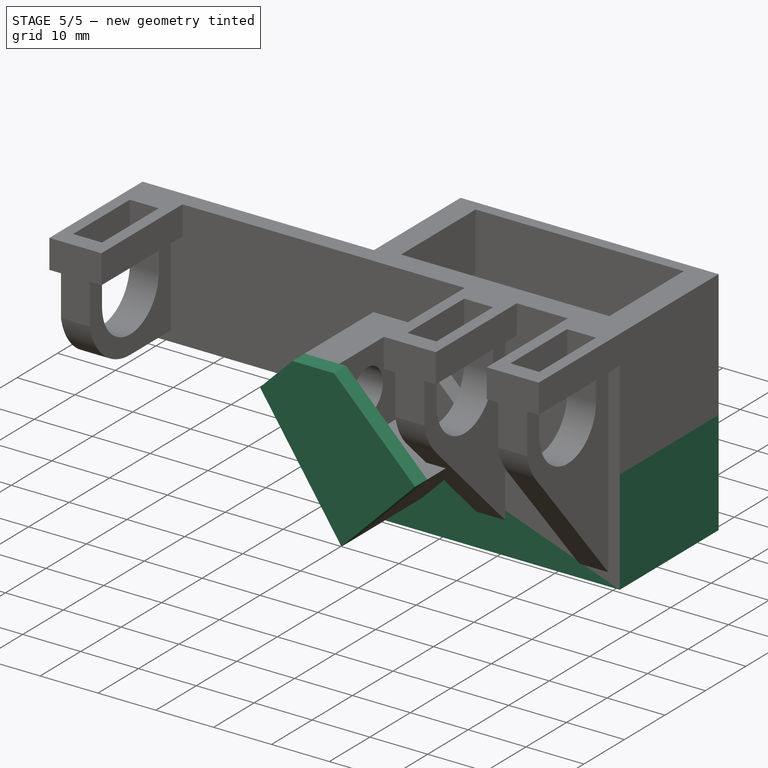
[diagram: stage 5 of 5 — iso view after this stage's code; geometry added in this stage tinted green]
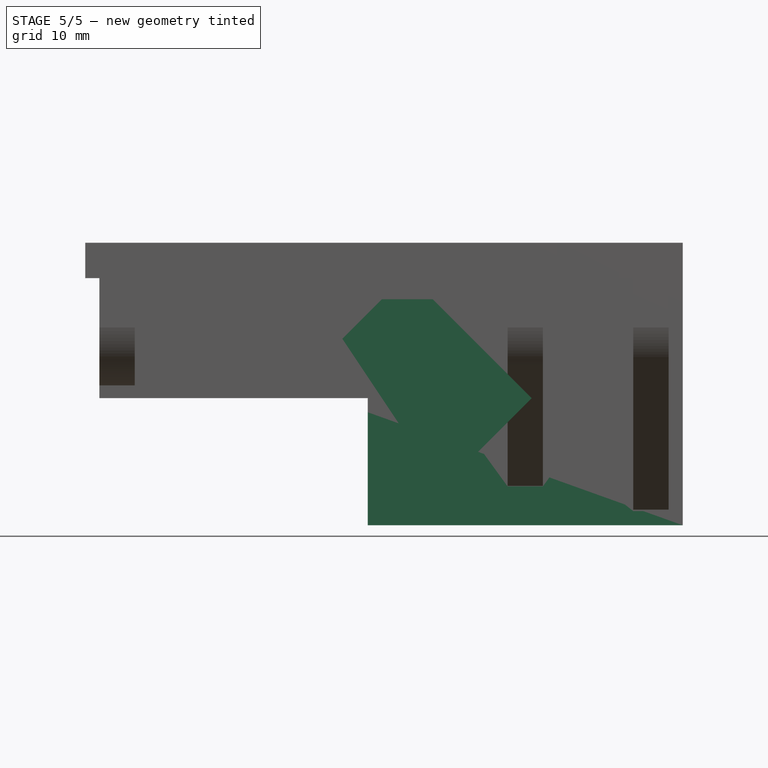
[diagram: stage 5 of 5 — front view after this stage's code; geometry added in this stage tinted green]
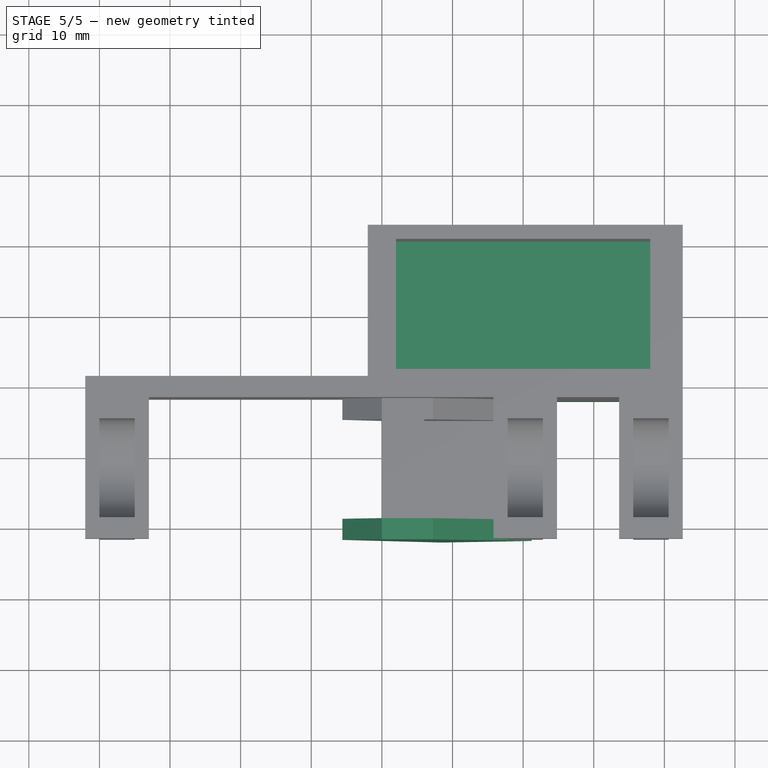
[diagram: stage 5 of 5 — top view after this stage's code; geometry added in this stage tinted green]
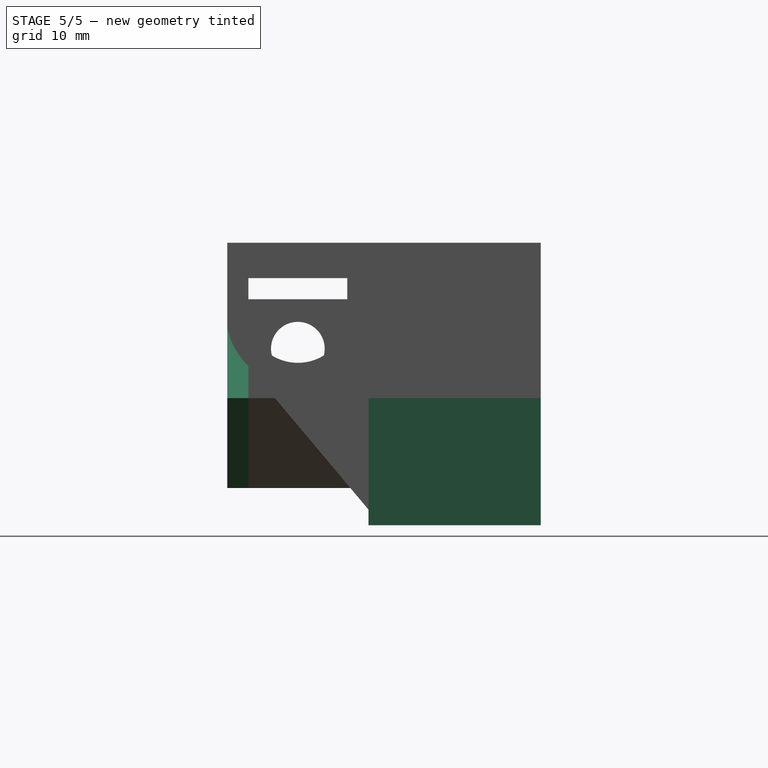
[diagram: stage 5 of 5 — right view after this stage's code; geometry added in this stage tinted green]
FEATURE [Sketcher::SketchObject] Sketch007
  ArcFitTolerance = 0
  AttachmentSupport = -> [XY_Plane001]
  FullyConstrained = true
  MakeInternals = false
  MapMode = 5
  sketch-geometry (8):
    g0: LineSegment StartX=0 StartY=20.4 StartZ=0 EndX=40.6 EndY=20.4 EndZ=0
    g1: LineSegment StartX=40.6 StartY=20.4 StartZ=0 EndX=40.6 EndY=0 EndZ=0
    g2: LineSegment StartX=40.6 StartY=0 StartZ=0 EndX=0 EndY=0 EndZ=0
    g3: LineSegment StartX=0 StartY=0 StartZ=0 EndX=0 EndY=20.4 EndZ=0
    g4: LineSegment StartX=-2 StartY=22.4 StartZ=0 EndX=42.6 EndY=22.4 EndZ=0
    g5: LineSegment StartX=42.6 StartY=22.4 StartZ=0 EndX=42.6 EndY=-2 EndZ=0
    g6: LineSegment StartX=42.6 StartY=-2 StartZ=0 EndX=-2 EndY=-2 EndZ=0
    g7: LineSegment StartX=-2 StartY=-2 StartZ=0 EndX=-2 EndY=22.4 EndZ=0
  constraints (24):
    c: Coincident(g0,g1)
    c: Coincident(g1,g2)
    c: Coincident(g2,g3)
    c: Coincident(g3,g0)
    c: Horizontal(g0)
    c: Horizontal(g2)
    c: Vertical(g1)
    c: Vertical(g3)
    c: Coincident(g4,g5)
    c: Coincident(g5,g6)
    c: Coincident(g7,g4)
    c: Horizontal(g4)
    c: Horizontal(g6)
    c: Vertical(g5)
    c: Vertical(g7)
    c: DistanceX(g2) = 0
    c: DistanceY(g2) = 0
    c: DistanceY(g3,g3) = 20.4
    c: DistanceX(g0,g0) = 40.6
    c: DistanceX(g0,g4) = 2
    c: DistanceX(g4,g0) = 2
    c: DistanceY(g0,g4) = 2
    c: DistanceY(g5,g1) = 2
    c: Coincident(g6,g7)
FEATURE [PartDesign::Pad] Pad006
  Direction = (0,0,1)
  Length = 18
  Length2 = 10
  Profile = -> Sketch007
  ReferenceAxis = -> Sketch007 [N_Axis]
  Reversed = true
  Suppressed = false
  Type = 0
FEATURE [PartDesign::AdditiveBox] Box001
  AttacherType = Attacher::AttachEngine3D
  AttachmentOffset = pos=(-2,-2,-2) rot=(0,0,1;0rad)
  AttachmentSupport = -> [XY_Plane001]
  BaseFeature = -> Pad006
  Height = 2
  Length = 44.6
  MapMode = 5
  Placement = pos=(-2,-2,-2) rot=(0,0,1;0rad)
  Suppressed = false
  Width = 24.2
FEATURE [PartDesign::SubtractiveBox] Box002
  AttacherType = Attacher::AttachEngine3D
  AttachmentOffset = pos=(0,20,-18) rot=(0,0,1;0rad)
  AttachmentSupport = -> [XY_Plane001]
  BaseFeature = -> Box001
  Height = 8
  Length = 40.6
  MapMode = 5
  Placement = pos=(0,20,-18) rot=(0,0,1;0rad)
  Suppressed = false
  Width = 3
FEATURE [PartDesign::Pad] Pad010
  BaseFeature = -> Pad009
  Direction = (0,-1,2e-16)
  Length = 3
  Length2 = 10
  Placement = pos=(0,0,0) rot=(1,1,1;2.0944rad)
  Profile = -> Sketch011
  ReferenceAxis = -> Sketch011 [N_Axis]
  Suppressed = false
  Type = 0
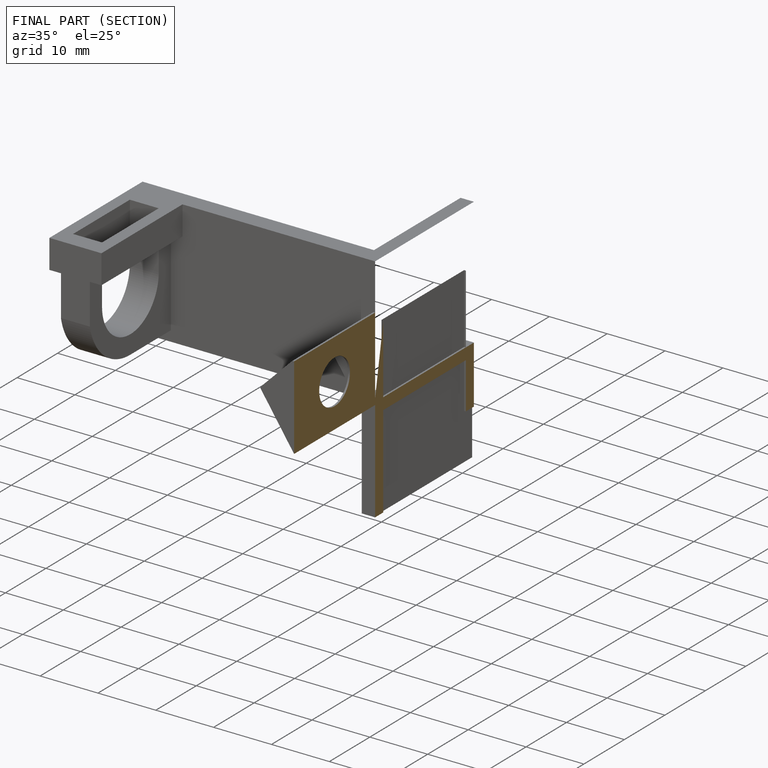
[diagram: finished part — half-section view (interior)]
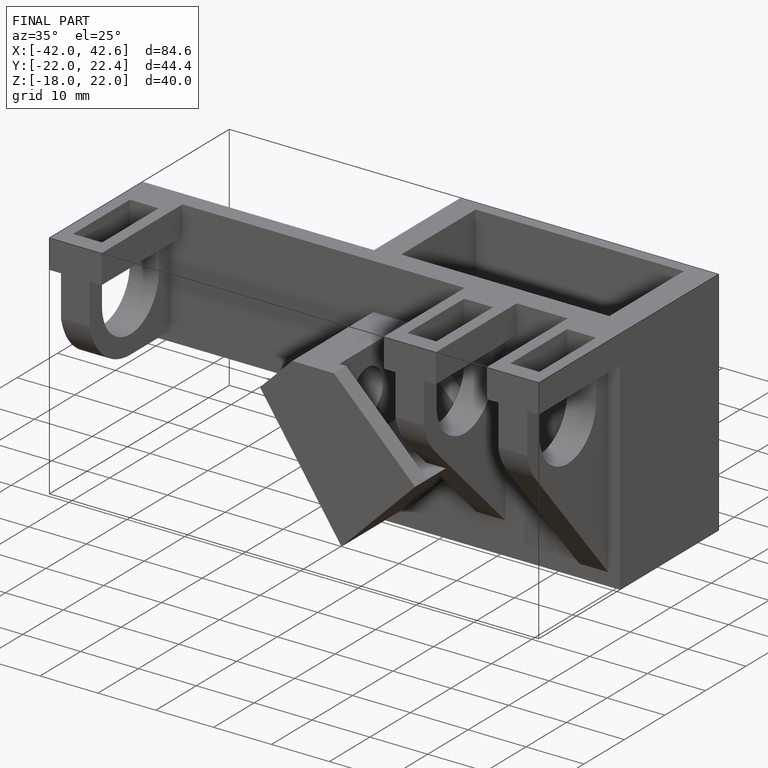
[diagram: finished part — iso view with bounding-box wireframe]
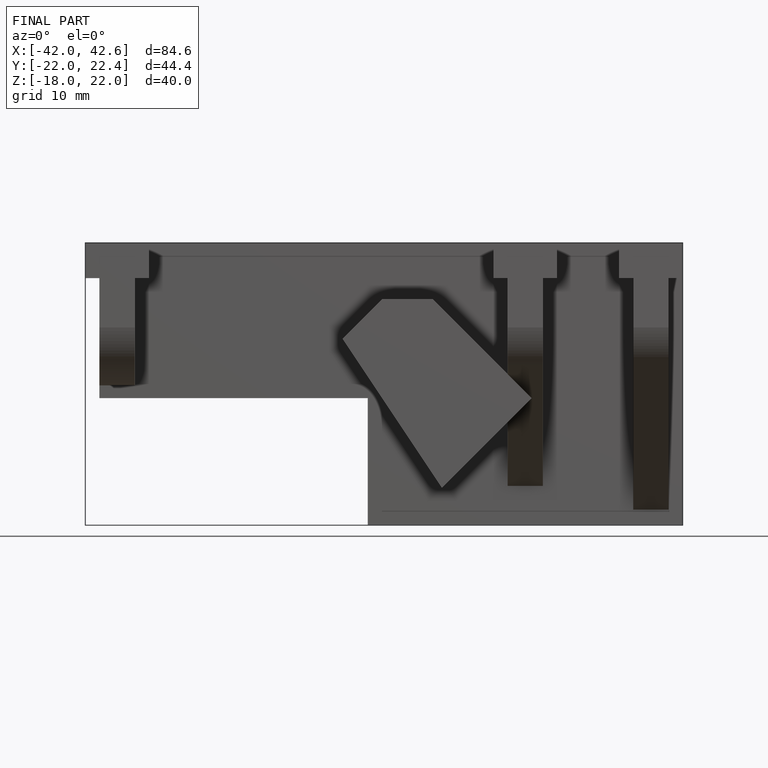
[diagram: finished part — front view with bounding-box wireframe]
